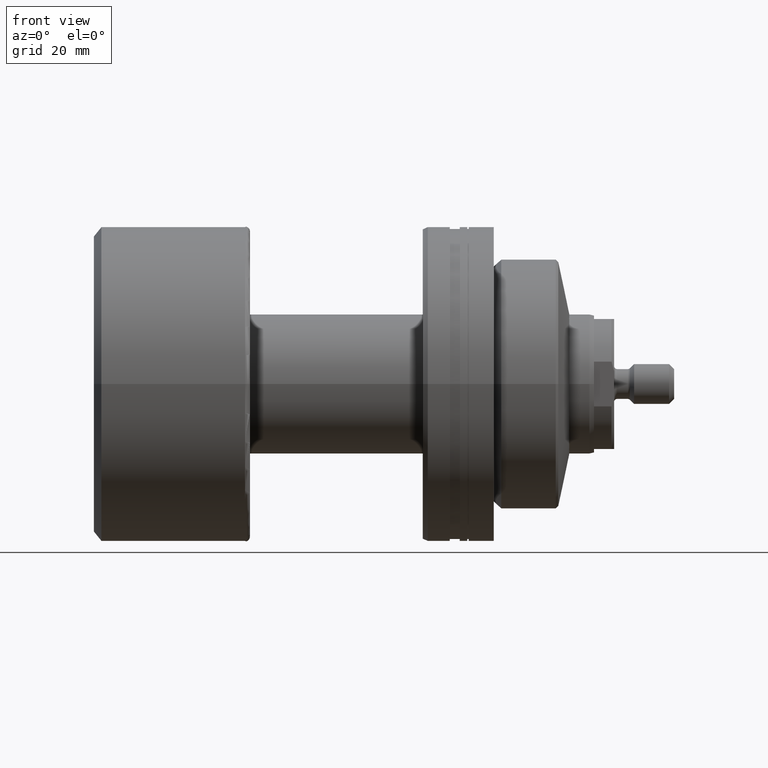
[diagram: clean part render]
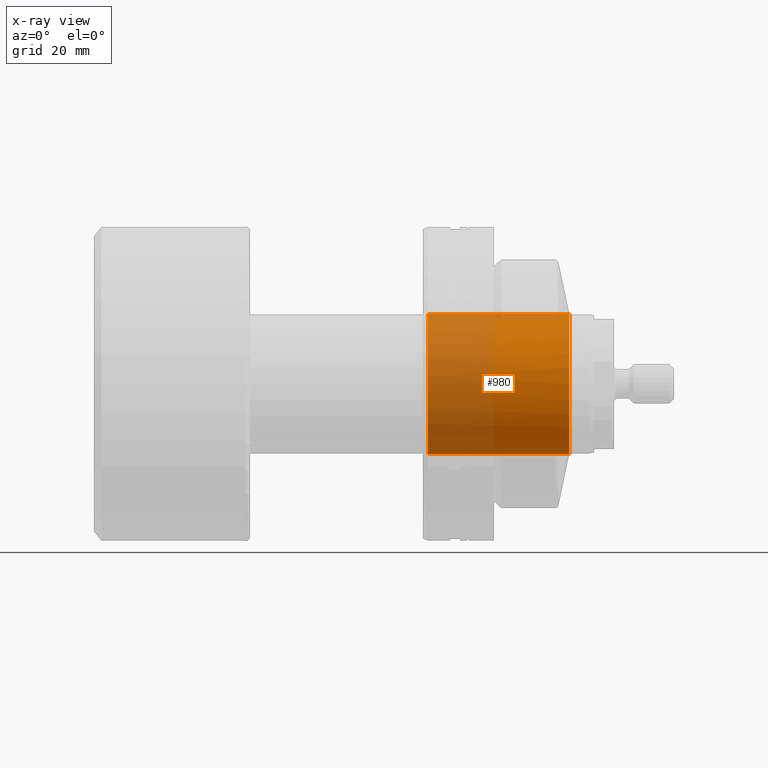
[diagram: x-ray — body ghosted, one internal face saturated and labeled with its STEP entity id]
A machine part, front view, then the same camera in x-ray: the body is ghosted and one INTERNAL B-rep face — a face not visible from any outside direction — is saturated and labeled: STEP entity #980.
In plain terms, the highlighted cylindrical surface (partial cylindrical patch) has radius 14 mm, axis along (1, 0, 0).
Its self-contained STEP definition (entity closure, byte-faithful):
#43 = CARTESIAN_POINT ( 'NONE',  ( -2.914285714286113826, 6.162975822039154730E-30, -14.00000000000000178 ) ) ;
#106 = CARTESIAN_POINT ( 'NONE',  ( -71.79797974644668557, 0.000000000000000000, -14.00000000000000178 ) ) ;
#126 = LINE ( 'NONE', #106, #2385 ) ;
#154 = DIRECTION ( 'NONE',  ( -1.000000000000000000, -1.931394410353556421E-15, 0.000000000000000000 ) ) ;
#162 = EDGE_CURVE ( 'NONE', #785, #1737, #842, .T. ) ;
#183 = DIRECTION ( 'NONE',  ( -1.000000000000000000, 0.000000000000000000, 0.000000000000000000 ) ) ;
#364 = DIRECTION ( 'NONE',  ( 1.000000000000000000, -0.000000000000000000, -0.000000000000000000 ) ) ;
#378 = CARTESIAN_POINT ( 'NONE',  ( -71.79797974644668557, 0.000000000000000000, 0.000000000000000000 ) ) ;
#406 = DIRECTION ( 'NONE',  ( 1.920586705545750655E-15, -1.000000000000000000, 0.000000000000000000 ) ) ;
#476 = EDGE_CURVE ( 'NONE', #1027, #744, #2028, .T. ) ;
#527 = ORIENTED_EDGE ( 'NONE', *, *, #162, .F. ) ;
#536 = CARTESIAN_POINT ( 'NONE',  ( -71.79797974644668557, 1.714505518806294835E-15, 14.00000000000000178 ) ) ;
#681 = CIRCLE ( 'NONE', #1808, 14.00000000000000178 ) ;
#686 = ORIENTED_EDGE ( 'NONE', *, *, #933, .T. ) ;
#712 = ORIENTED_EDGE ( 'NONE', *, *, #2428, .F. ) ;
#744 = VERTEX_POINT ( 'NONE', #2373 ) ;
#780 = CARTESIAN_POINT ( 'NONE',  ( -31.20000000000002061, 0.000000000000000000, 0.000000000000000000 ) ) ;
#785 = VERTEX_POINT ( 'NONE', #43 ) ;
#808 = DIRECTION ( 'NONE',  ( 0.000000000000000000, 0.000000000000000000, -1.000000000000000000 ) ) ;
#842 = CIRCLE ( 'NONE', #2638, 14.00000000000000178 ) ;
#933 = EDGE_CURVE ( 'NONE', #1240, #1027, #1579, .T. ) ;
#980 = ADVANCED_FACE ( 'NONE', ( #2061 ), #1443, .F. ) ;
#1027 = VERTEX_POINT ( 'NONE', #1470 ) ;
#1047 = DIRECTION ( 'NONE',  ( 0.000000000000000000, 0.000000000000000000, -1.000000000000000000 ) ) ;
#1161 = CARTESIAN_POINT ( 'NONE',  ( -31.20000000000002061, 0.000000000000000000, -14.00000000000000178 ) ) ;
#1216 = VECTOR ( 'NONE', #1641, 1000.000000000000000 ) ;
#1240 = VERTEX_POINT ( 'NONE', #1161 ) ;
#1443 = CYLINDRICAL_SURFACE ( 'NONE', #2060, 14.00000000000000178 ) ;
#1470 = CARTESIAN_POINT ( 'NONE',  ( -31.20000000000002061, 1.714505518806294835E-15, 14.00000000000000178 ) ) ;
#1472 = DIRECTION ( 'NONE',  ( -1.000000000000000000, -1.931394410353556421E-15, 0.000000000000000000 ) ) ;
#1574 = ORIENTED_EDGE ( 'NONE', *, *, #476, .T. ) ;
#1579 = CIRCLE ( 'NONE', #2601, 14.00000000000000178 ) ;
#1641 = DIRECTION ( 'NONE',  ( 1.000000000000000000, -0.000000000000000000, -0.000000000000000000 ) ) ;
#1737 = VERTEX_POINT ( 'NONE', #2637 ) ;
#1808 = AXIS2_PLACEMENT_3D ( 'NONE', #2313, #154, #2328 ) ;
#2012 = EDGE_LOOP ( 'NONE', ( #686, #1574, #712, #527, #2195 ) ) ;
#2028 = LINE ( 'NONE', #536, #1216 ) ;
#2060 = AXIS2_PLACEMENT_3D ( 'NONE', #378, #364, #808 ) ;
#2061 = FACE_OUTER_BOUND ( 'NONE', #2012, .T. ) ;
#2195 = ORIENTED_EDGE ( 'NONE', *, *, #2233, .F. ) ;
#2233 = EDGE_CURVE ( 'NONE', #1240, #785, #126, .T. ) ;
#2263 = DIRECTION ( 'NONE',  ( 1.000000000000000000, -0.000000000000000000, -0.000000000000000000 ) ) ;
#2313 = CARTESIAN_POINT ( 'NONE',  ( -2.914285714286113826, 5.285403157867643656E-14, 0.000000000000000000 ) ) ;
#2319 = CARTESIAN_POINT ( 'NONE',  ( -2.914285714286113826, 5.285403157867643656E-14, 0.000000000000000000 ) ) ;
#2328 = DIRECTION ( 'NONE',  ( 1.920586705545750655E-15, -1.000000000000000000, 0.000000000000000000 ) ) ;
#2373 = CARTESIAN_POINT ( 'NONE',  ( -2.914285714286113826, 1.714505518806296807E-15, 14.00000000000000178 ) ) ;
#2385 = VECTOR ( 'NONE', #2263, 1000.000000000000000 ) ;
#2428 = EDGE_CURVE ( 'NONE', #1737, #744, #681, .T. ) ;
#2601 = AXIS2_PLACEMENT_3D ( 'NONE', #780, #183, #1047 ) ;
#2637 = CARTESIAN_POINT ( 'NONE',  ( -2.914285714286086737, -13.99999999999995026, 0.000000000000000000 ) ) ;
#2638 = AXIS2_PLACEMENT_3D ( 'NONE', #2319, #1472, #406 ) ;